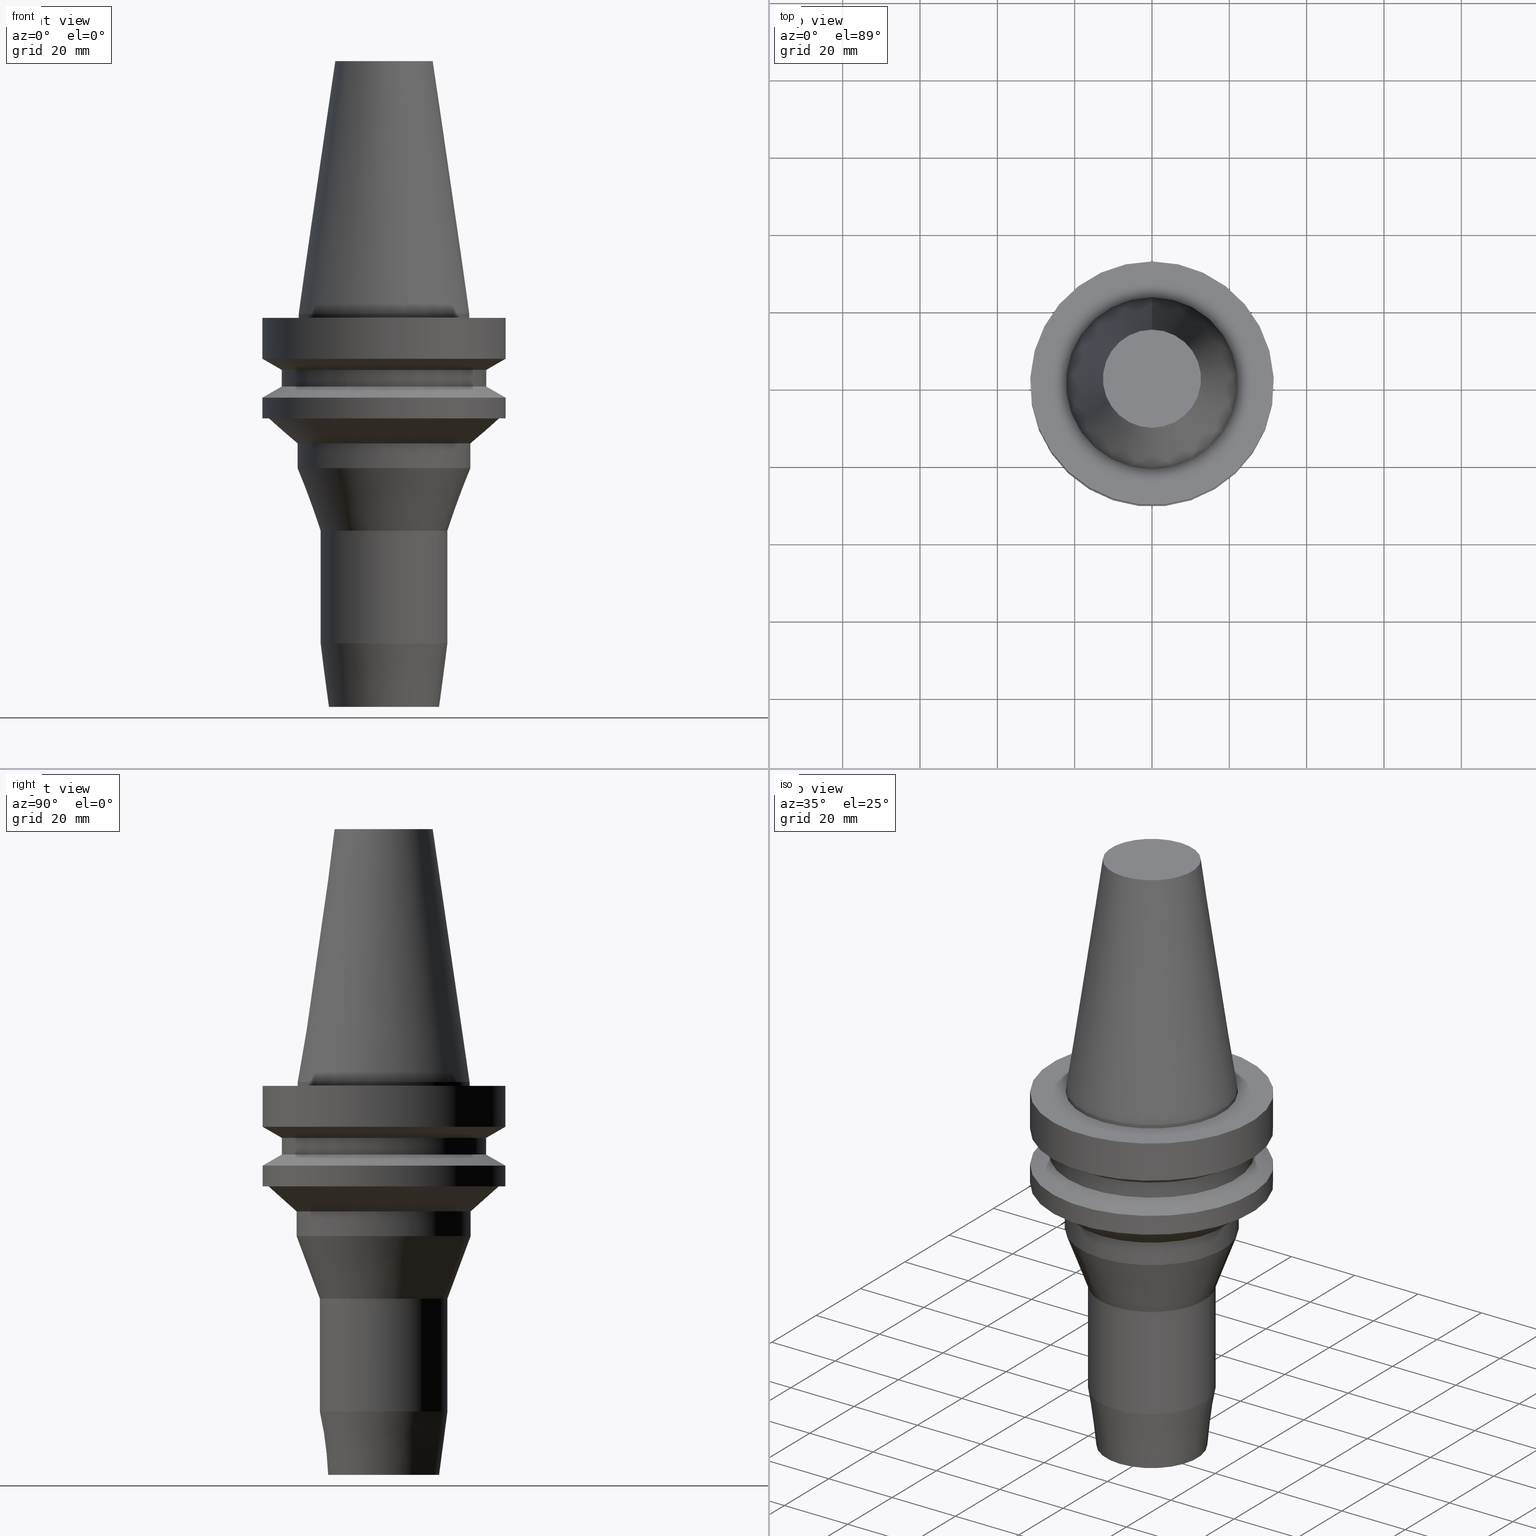
[diagram: canonical four-view strip — front | top / right | iso, engineering-drawing reading convention]
A machine part, canonical four-view strip (front | top / right | iso — engineering-drawing reading convention). The complete STEP part file that produces these views, byte-faithful:
ISO-10303-21;
HEADER;
FILE_DESCRIPTION((''),'1');
FILE_NAME('V:/90_\X2\53D65F9730C730FC30BF\X0\/00_\X2\6DE18DEF30C730FC30BF\X0\/ALL/BBT-BKUS\X2\FF76FF80FF9BFF78FF9E752852A05DE556F3\X0\201801/BBT40-HDC/BBT40-HDC.500-4.stp','2018-02-07T05:02:33',(''),(''),'Spatial Interop R21 SP3','Kubotek KeyCreator 2011 V10.0.2 (22737)',' ');
FILE_SCHEMA(('automotive_design'));
ENDSEC;
DATA;
#1=MECHANICAL_DESIGN_GEOMETRIC_PRESENTATION_REPRESENTATION(' ',(#10,#11,#12,#13,#14,#15,#16,#17,#18,#19,#20,#21,#22,#23,#24,#25,#26,#27,#28,#29,#30,#31,#32,#33,#34,#35,#36,#37,#38,#39,#40,#41),#6);
#2=PRODUCT_DEFINITION_CONTEXT('',#42,'design');
#3=APPLICATION_PROTOCOL_DEFINITION('INTERNATIONAL STANDARD','automotive_design',1994,#42);
#4=PRODUCT_CATEGORY_RELATIONSHIP('NONE','NONE',#43,#44);
#5=SHAPE_DEFINITION_REPRESENTATION(#45,#46);
#6= (GEOMETRIC_REPRESENTATION_CONTEXT(3)GLOBAL_UNCERTAINTY_ASSIGNED_CONTEXT((#49))GLOBAL_UNIT_ASSIGNED_CONTEXT((#51,#52,#53))REPRESENTATION_CONTEXT('NONE','WORKSPACE'));
#10=STYLED_ITEM('',(#55,#56),#57);
#11=STYLED_ITEM('',(#58),#59);
#12=STYLED_ITEM('',(#60,#61),#62);
#13=STYLED_ITEM('',(#63,#64),#65);
#14=STYLED_ITEM('',(#66,#67),#68);
#15=STYLED_ITEM('',(#69,#70),#71);
#16=STYLED_ITEM('',(#72),#73);
#17=STYLED_ITEM('',(#74,#75),#76);
#18=STYLED_ITEM('',(#77),#78);
#19=STYLED_ITEM('',(#79,#80),#81);
#20=STYLED_ITEM('',(#82),#83);
#21=STYLED_ITEM('',(#84,#85),#86);
#22=STYLED_ITEM('',(#87,#88),#89);
#23=STYLED_ITEM('',(#90),#91);
#24=STYLED_ITEM('',(#92,#93),#94);
#25=STYLED_ITEM('',(#95,#96),#97);
#26=STYLED_ITEM('',(#98),#99);
#27=STYLED_ITEM('',(#100,#101),#102);
#28=STYLED_ITEM('',(#103),#104);
#29=STYLED_ITEM('',(#105),#106);
#30=STYLED_ITEM('',(#107),#108);
#31=STYLED_ITEM('',(#109,#110),#111);
#32=STYLED_ITEM('',(#112,#113),#114);
#33=STYLED_ITEM('',(#115),#116);
#34=STYLED_ITEM('',(#117,#118),#119);
#35=STYLED_ITEM('',(#120),#121);
#36=STYLED_ITEM('',(#122),#123);
#37=STYLED_ITEM('',(#124),#125);
#38=STYLED_ITEM('',(#126),#127);
#39=STYLED_ITEM('',(#128),#129);
#40=STYLED_ITEM('',(#130,#131),#132);
#41=STYLED_ITEM('',(#133,#134),#135);
#42=APPLICATION_CONTEXT(' ');
#43=PRODUCT_CATEGORY('part','NONE');
#44=PRODUCT_RELATED_PRODUCT_CATEGORY('detail',' ',(#136));
#45=PRODUCT_DEFINITION_SHAPE('NONE','NONE',#137);
#46=ADVANCED_BREP_SHAPE_REPRESENTATION('Unnamed[1]',(#97,#138),#6);
#49=UNCERTAINTY_MEASURE_WITH_UNIT(LENGTH_MEASURE(1.0E-006),#51,'','');
#51= (CONVERSION_BASED_UNIT('MILLIMETRE',#141)LENGTH_UNIT()NAMED_UNIT(#144));
#52= (NAMED_UNIT(#146)PLANE_ANGLE_UNIT()SI_UNIT($,.RADIAN.));
#53= (NAMED_UNIT(#146)SOLID_ANGLE_UNIT()SI_UNIT($,.STERADIAN.));
#55=PRESENTATION_STYLE_ASSIGNMENT((#152));
#56=PRESENTATION_STYLE_ASSIGNMENT((#153));
#57=ADVANCED_FACE('Unnamed[1]',(#154),#155,.T.);
#58=PRESENTATION_STYLE_ASSIGNMENT((#156));
#59=EDGE_CURVE('Unnamed[1]',#157,#157,#158,.T.);
#60=PRESENTATION_STYLE_ASSIGNMENT((#159));
#61=PRESENTATION_STYLE_ASSIGNMENT((#160));
#62=ADVANCED_FACE('Unnamed[1]',(#161,#162),#163,.T.);
#63=PRESENTATION_STYLE_ASSIGNMENT((#164));
#64=PRESENTATION_STYLE_ASSIGNMENT((#165));
#65=ADVANCED_FACE('Unnamed[1]',(#166,#167),#168,.T.);
#66=PRESENTATION_STYLE_ASSIGNMENT((#169));
#67=PRESENTATION_STYLE_ASSIGNMENT((#170));
#68=ADVANCED_FACE('Unnamed[1]',(#171,#172),#173,.T.);
#69=PRESENTATION_STYLE_ASSIGNMENT((#174));
#70=PRESENTATION_STYLE_ASSIGNMENT((#175));
#71=ADVANCED_FACE('Unnamed[1]',(#176,#177),#178,.T.);
#72=PRESENTATION_STYLE_ASSIGNMENT((#179));
#73=EDGE_CURVE('Unnamed[1]',#180,#180,#181,.T.);
#74=PRESENTATION_STYLE_ASSIGNMENT((#182));
#75=PRESENTATION_STYLE_ASSIGNMENT((#183));
#76=ADVANCED_FACE('Unnamed[1]',(#184,#185),#186,.T.);
#77=PRESENTATION_STYLE_ASSIGNMENT((#187));
#78=EDGE_CURVE('Unnamed[1]',#188,#188,#189,.T.);
#79=PRESENTATION_STYLE_ASSIGNMENT((#190));
#80=PRESENTATION_STYLE_ASSIGNMENT((#191));
#81=ADVANCED_FACE('Unnamed[1]',(#192,#193),#194,.T.);
#82=PRESENTATION_STYLE_ASSIGNMENT((#195));
#83=EDGE_CURVE('Unnamed[1]',#196,#196,#197,.T.);
#84=PRESENTATION_STYLE_ASSIGNMENT((#198));
#85=PRESENTATION_STYLE_ASSIGNMENT((#199));
#86=ADVANCED_FACE('Unnamed[1]',(#200,#201),#202,.T.);
#87=PRESENTATION_STYLE_ASSIGNMENT((#203));
#88=PRESENTATION_STYLE_ASSIGNMENT((#204));
#89=ADVANCED_FACE('Unnamed[1]',(#205,#206),#207,.T.);
#90=PRESENTATION_STYLE_ASSIGNMENT((#208));
#91=EDGE_CURVE('Unnamed[1]',#209,#209,#210,.T.);
#92=PRESENTATION_STYLE_ASSIGNMENT((#211));
#93=PRESENTATION_STYLE_ASSIGNMENT((#212));
#94=ADVANCED_FACE('Unnamed[1]',(#213),#214,.T.);
#95=PRESENTATION_STYLE_ASSIGNMENT((#215));
#96=PRESENTATION_STYLE_ASSIGNMENT((#216));
#97=MANIFOLD_SOLID_BREP('Unnamed[1]',#217);
#98=PRESENTATION_STYLE_ASSIGNMENT((#218));
#99=EDGE_CURVE('Unnamed[1]',#219,#219,#220,.T.);
#100=PRESENTATION_STYLE_ASSIGNMENT((#221));
#101=PRESENTATION_STYLE_ASSIGNMENT((#222));
#102=ADVANCED_FACE('Unnamed[1]',(#223,#224),#225,.T.);
#103=PRESENTATION_STYLE_ASSIGNMENT((#226));
#104=EDGE_CURVE('Unnamed[1]',#227,#227,#228,.T.);
#105=PRESENTATION_STYLE_ASSIGNMENT((#229));
#106=EDGE_CURVE('Unnamed[1]',#230,#230,#231,.T.);
#107=PRESENTATION_STYLE_ASSIGNMENT((#232));
#108=EDGE_CURVE('Unnamed[1]',#233,#233,#234,.T.);
#109=PRESENTATION_STYLE_ASSIGNMENT((#235));
#110=PRESENTATION_STYLE_ASSIGNMENT((#236));
#111=ADVANCED_FACE('Unnamed[1]',(#237,#238),#239,.T.);
#112=PRESENTATION_STYLE_ASSIGNMENT((#240));
#113=PRESENTATION_STYLE_ASSIGNMENT((#241));
#114=ADVANCED_FACE('Unnamed[1]',(#242,#243),#244,.T.);
#115=PRESENTATION_STYLE_ASSIGNMENT((#245));
#116=EDGE_CURVE('Unnamed[1]',#246,#246,#247,.T.);
#117=PRESENTATION_STYLE_ASSIGNMENT((#248));
#118=PRESENTATION_STYLE_ASSIGNMENT((#249));
#119=ADVANCED_FACE('Unnamed[1]',(#250,#251),#252,.T.);
#120=PRESENTATION_STYLE_ASSIGNMENT((#253));
#121=EDGE_CURVE('Unnamed[1]',#254,#254,#255,.T.);
#122=PRESENTATION_STYLE_ASSIGNMENT((#256));
#123=EDGE_CURVE('Unnamed[1]',#257,#257,#258,.T.);
#124=PRESENTATION_STYLE_ASSIGNMENT((#259));
#125=EDGE_CURVE('Unnamed[1]',#260,#260,#261,.T.);
#126=PRESENTATION_STYLE_ASSIGNMENT((#262));
#127=EDGE_CURVE('Unnamed[1]',#263,#263,#264,.T.);
#128=PRESENTATION_STYLE_ASSIGNMENT((#265));
#129=EDGE_CURVE('Unnamed[1]',#266,#266,#267,.T.);
#130=PRESENTATION_STYLE_ASSIGNMENT((#268));
#131=PRESENTATION_STYLE_ASSIGNMENT((#269));
#132=ADVANCED_FACE('Unnamed[1]',(#270,#271),#272,.T.);
#133=PRESENTATION_STYLE_ASSIGNMENT((#273));
#134=PRESENTATION_STYLE_ASSIGNMENT((#274));
#135=ADVANCED_FACE('Unnamed[1]',(#275,#276),#277,.T.);
#136=PRODUCT('Unnamed[1]','Unnamed[1]','PART-Unnamed[1]-DESC',(#278));
#137=PRODUCT_DEFINITION('NONE','NONE',#279,#2);
#138=AXIS2_PLACEMENT_3D('',#280,#281,#282);
#141=LENGTH_MEASURE_WITH_UNIT(LENGTH_MEASURE(1.0),#283);
#144=DIMENSIONAL_EXPONENTS(1.0,0.0,0.0,0.0,0.0,0.0,0.0);
#146=DIMENSIONAL_EXPONENTS(0.0,0.0,0.0,0.0,0.0,0.0,0.0);
#152=SURFACE_STYLE_USAGE(.BOTH.,#284);
#153=CURVE_STYLE('',#285,POSITIVE_LENGTH_MEASURE(1000.0),#286);
#154=FACE_OUTER_BOUND('',#287,.T.);
#155=PLANE('',#288);
#156=CURVE_STYLE('',#289,POSITIVE_LENGTH_MEASURE(1000.0),#290);
#157=VERTEX_POINT('',#291);
#158=CIRCLE('',#292,26.5);
#159=SURFACE_STYLE_USAGE(.BOTH.,#293);
#160=CURVE_STYLE('',#294,POSITIVE_LENGTH_MEASURE(1000.0),#295);
#161=FACE_BOUND('',#296,.T.);
#162=FACE_BOUND('',#297,.T.);
#163=CONICAL_SURFACE('',#298,26.1261195155516,0.842867621949319);
#164=SURFACE_STYLE_USAGE(.BOTH.,#299);
#165=CURVE_STYLE('',#300,POSITIVE_LENGTH_MEASURE(1000.0),#301);
#166=FACE_BOUND('',#302,.T.);
#167=FACE_BOUND('',#303,.T.);
#168=CONICAL_SURFACE('',#304,28.9999999999999,1.04719755119657);
#169=SURFACE_STYLE_USAGE(.BOTH.,#305);
#170=CURVE_STYLE('',#306,POSITIVE_LENGTH_MEASURE(1000.0),#307);
#171=FACE_BOUND('',#308,.T.);
#172=FACE_BOUND('',#309,.T.);
#173=CYLINDRICAL_SURFACE('',#310,26.4999999999997);
#174=SURFACE_STYLE_USAGE(.BOTH.,#311);
#175=CURVE_STYLE('',#312,POSITIVE_LENGTH_MEASURE(1000.0),#313);
#176=FACE_BOUND('',#314,.T.);
#177=FACE_BOUND('',#315,.T.);
#178=CONICAL_SURFACE('',#316,17.4562500000001,0.144812498238936);
#179=CURVE_STYLE('',#317,POSITIVE_LENGTH_MEASURE(1000.0),#318);
#180=VERTEX_POINT('',#319);
#181=CIRCLE('',#320,12.6875000000001);
#182=SURFACE_STYLE_USAGE(.BOTH.,#321);
#183=CURVE_STYLE('',#322,POSITIVE_LENGTH_MEASURE(1000.0),#323);
#184=FACE_BOUND('',#324,.T.);
#185=FACE_BOUND('',#325,.T.);
#186=CONICAL_SURFACE('',#326,29.0000000000003,1.04719755119651);
#187=CURVE_STYLE('',#327,POSITIVE_LENGTH_MEASURE(1000.0),#328);
#188=VERTEX_POINT('',#329);
#189=CIRCLE('',#330,16.4999999999999);
#190=SURFACE_STYLE_USAGE(.BOTH.,#331);
#191=CURVE_STYLE('',#332,POSITIVE_LENGTH_MEASURE(1000.0),#333);
#192=FACE_BOUND('',#334,.T.);
#193=FACE_BOUND('',#335,.T.);
#194=CYLINDRICAL_SURFACE('',#336,31.5000000000005);
#195=CURVE_STYLE('',#337,POSITIVE_LENGTH_MEASURE(1000.0),#338);
#196=VERTEX_POINT('',#339);
#197=CIRCLE('',#340,22.225);
#198=SURFACE_STYLE_USAGE(.BOTH.,#341);
#199=CURVE_STYLE('',#342,POSITIVE_LENGTH_MEASURE(1000.0),#343);
#200=FACE_BOUND('',#344,.T.);
#201=FACE_BOUND('',#345,.T.);
#202=CONICAL_SURFACE('',#346,15.4226826777203,0.130899693899545);
#203=SURFACE_STYLE_USAGE(.BOTH.,#347);
#204=CURVE_STYLE('',#348,POSITIVE_LENGTH_MEASURE(1000.0),#349);
#205=FACE_BOUND('',#350,.T.);
#206=FACE_OUTER_BOUND('',#351,.T.);
#207=PLANE('',#352);
#208=CURVE_STYLE('',#353,POSITIVE_LENGTH_MEASURE(1000.0),#354);
#209=VERTEX_POINT('',#355);
#210=CIRCLE('',#356,22.4999999999999);
#211=SURFACE_STYLE_USAGE(.BOTH.,#357);
#212=CURVE_STYLE('',#358,POSITIVE_LENGTH_MEASURE(1000.0),#359);
#213=FACE_OUTER_BOUND('',#360,.T.);
#214=PLANE('',#361);
#215=SURFACE_STYLE_USAGE(.BOTH.,#362);
#216=CURVE_STYLE('',#363,POSITIVE_LENGTH_MEASURE(1000.0),#364);
#217=CLOSED_SHELL('',(#94,#71,#111,#132,#114,#65,#68,#76,#81,#89,#62,#102,#135,#119,#86,#57));
#218=CURVE_STYLE('',#365,POSITIVE_LENGTH_MEASURE(1000.0),#366);
#219=VERTEX_POINT('',#367);
#220=CIRCLE('',#368,31.5000000000003);
#221=SURFACE_STYLE_USAGE(.BOTH.,#369);
#222=CURVE_STYLE('',#370,POSITIVE_LENGTH_MEASURE(1000.0),#371);
#223=FACE_BOUND('',#372,.T.);
#224=FACE_BOUND('',#373,.T.);
#225=CYLINDRICAL_SURFACE('',#374,22.4999999999999);
#226=CURVE_STYLE('',#375,POSITIVE_LENGTH_MEASURE(1000.0),#376);
#227=VERTEX_POINT('',#377);
#228=CIRCLE('',#378,29.7522390311033);
#229=CURVE_STYLE('',#379,POSITIVE_LENGTH_MEASURE(1000.0),#380);
#230=VERTEX_POINT('',#381);
#231=CIRCLE('',#382,14.3453653554406);
#232=CURVE_STYLE('',#383,POSITIVE_LENGTH_MEASURE(1000.0),#384);
#233=VERTEX_POINT('',#385);
#234=CIRCLE('',#386,16.4999999999999);
#235=SURFACE_STYLE_USAGE(.BOTH.,#387);
#236=CURVE_STYLE('',#388,POSITIVE_LENGTH_MEASURE(1000.0),#389);
#237=FACE_BOUND('',#390,.T.);
#238=FACE_BOUND('',#391,.T.);
#239=CYLINDRICAL_SURFACE('',#392,22.225);
#240=SURFACE_STYLE_USAGE(.BOTH.,#393);
#241=CURVE_STYLE('',#394,POSITIVE_LENGTH_MEASURE(1000.0),#395);
#242=FACE_BOUND('',#396,.T.);
#243=FACE_BOUND('',#397,.T.);
#244=CYLINDRICAL_SURFACE('',#398,31.5);
#245=CURVE_STYLE('',#399,POSITIVE_LENGTH_MEASURE(1000.0),#400);
#246=VERTEX_POINT('',#401);
#247=CIRCLE('',#402,22.4999999999999);
#248=SURFACE_STYLE_USAGE(.BOTH.,#403);
#249=CURVE_STYLE('',#404,POSITIVE_LENGTH_MEASURE(1000.0),#405);
#250=FACE_BOUND('',#406,.T.);
#251=FACE_BOUND('',#407,.T.);
#252=CYLINDRICAL_SURFACE('',#408,16.4999999999999);
#253=CURVE_STYLE('',#409,POSITIVE_LENGTH_MEASURE(1000.0),#410);
#254=VERTEX_POINT('',#411);
#255=CIRCLE('',#412,22.225);
#256=CURVE_STYLE('',#413,POSITIVE_LENGTH_MEASURE(1000.0),#414);
#257=VERTEX_POINT('',#415);
#258=CIRCLE('',#416,31.4999999999997);
#259=CURVE_STYLE('',#417,POSITIVE_LENGTH_MEASURE(1000.0),#418);
#260=VERTEX_POINT('',#419);
#261=CIRCLE('',#420,31.5000000000007);
#262=CURVE_STYLE('',#421,POSITIVE_LENGTH_MEASURE(1000.0),#422);
#263=VERTEX_POINT('',#423);
#264=CIRCLE('',#424,26.4999999999994);
#265=CURVE_STYLE('',#425,POSITIVE_LENGTH_MEASURE(1000.0),#426);
#266=VERTEX_POINT('',#427);
#267=CIRCLE('',#428,31.5000000000004);
#268=SURFACE_STYLE_USAGE(.BOTH.,#429);
#269=CURVE_STYLE('',#430,POSITIVE_LENGTH_MEASURE(1000.0),#431);
#270=FACE_OUTER_BOUND('',#432,.T.);
#271=FACE_BOUND('',#433,.T.);
#272=PLANE('',#434);
#273=SURFACE_STYLE_USAGE(.BOTH.,#435);
#274=CURVE_STYLE('',#436,POSITIVE_LENGTH_MEASURE(1000.0),#437);
#275=FACE_BOUND('',#438,.T.);
#276=FACE_BOUND('',#439,.T.);
#277=CONICAL_SURFACE('',#440,19.4999999999999,0.355684628687854);
#278=PRODUCT_CONTEXT('',#42,'mechanical');
#279=PRODUCT_DEFINITION_FORMATION_WITH_SPECIFIED_SOURCE(' ','NONE',#136,.NOT_KNOWN.);
#280=CARTESIAN_POINT('',(0.0,0.0,0.0));
#281=DIRECTION('',(0.0,0.0,1.0));
#282=DIRECTION('',(1.0,0.0,0.0));
#283= (NAMED_UNIT(#144)LENGTH_UNIT()SI_UNIT(.MILLI.,.METRE.));
#284=SURFACE_SIDE_STYLE('',(#442));
#285=DRAUGHTING_PRE_DEFINED_CURVE_FONT('continuous');
#286=COLOUR_RGB('',0.0,1.0,0.0);
#287=EDGE_LOOP('',(#443));
#288=AXIS2_PLACEMENT_3D('',#444,#445,#446);
#289=DRAUGHTING_PRE_DEFINED_CURVE_FONT('continuous');
#290=COLOUR_RGB('',0.0,1.0,0.0);
#291=CARTESIAN_POINT('',(1.1479681728942E-015,26.5,-18.7477430013855));
#292=AXIS2_PLACEMENT_3D('',#447,#448,#449);
#293=SURFACE_SIDE_STYLE('',(#450));
#294=DRAUGHTING_PRE_DEFINED_CURVE_FONT('continuous');
#295=COLOUR_RGB('',0.0,1.0,0.0);
#296=EDGE_LOOP('',(#451));
#297=EDGE_LOOP('',(#452));
#298=AXIS2_PLACEMENT_3D('',#453,#454,#455);
#299=SURFACE_SIDE_STYLE('',(#456));
#300=DRAUGHTING_PRE_DEFINED_CURVE_FONT('continuous');
#301=COLOUR_RGB('',0.0,1.0,0.0);
#302=EDGE_LOOP('',(#457));
#303=EDGE_LOOP('',(#458));
#304=AXIS2_PLACEMENT_3D('',#459,#460,#461);
#305=SURFACE_SIDE_STYLE('',(#462));
#306=DRAUGHTING_PRE_DEFINED_CURVE_FONT('continuous');
#307=COLOUR_RGB('',0.0,1.0,0.0);
#308=EDGE_LOOP('',(#463));
#309=EDGE_LOOP('',(#464));
#310=AXIS2_PLACEMENT_3D('',#465,#466,#467);
#311=SURFACE_SIDE_STYLE('',(#468));
#312=DRAUGHTING_PRE_DEFINED_CURVE_FONT('continuous');
#313=COLOUR_RGB('',0.0,1.0,0.0);
#314=EDGE_LOOP('',(#469));
#315=EDGE_LOOP('',(#470));
#316=AXIS2_PLACEMENT_3D('',#471,#472,#473);
#317=DRAUGHTING_PRE_DEFINED_CURVE_FONT('continuous');
#318=COLOUR_RGB('',0.0,1.0,0.0);
#319=CARTESIAN_POINT('',(-4.00459503321185E-015,12.6875000000002,65.4000000000001));
#320=AXIS2_PLACEMENT_3D('',#474,#475,#476);
#321=SURFACE_SIDE_STYLE('',(#477));
#322=DRAUGHTING_PRE_DEFINED_CURVE_FONT('continuous');
#323=COLOUR_RGB('',0.0,1.0,0.0);
#324=EDGE_LOOP('',(#478));
#325=EDGE_LOOP('',(#479));
#326=AXIS2_PLACEMENT_3D('',#480,#481,#482);
#327=DRAUGHTING_PRE_DEFINED_CURVE_FONT('continuous');
#328=COLOUR_RGB('',0.0,1.0,0.0);
#329=CARTESIAN_POINT('',(5.21907267377241E-015,16.4999999999999,-85.2339250370986));
#330=AXIS2_PLACEMENT_3D('',#483,#484,#485);
#331=SURFACE_SIDE_STYLE('',(#486));
#332=DRAUGHTING_PRE_DEFINED_CURVE_FONT('continuous');
#333=COLOUR_RGB('',0.0,1.0,0.0);
#334=EDGE_LOOP('',(#487));
#335=EDGE_LOOP('',(#488));
#336=AXIS2_PLACEMENT_3D('',#489,#490,#491);
#337=DRAUGHTING_PRE_DEFINED_CURVE_FONT('continuous');
#338=COLOUR_RGB('',0.0,1.0,0.0);
#339=CARTESIAN_POINT('',(6.12323399573622E-017,22.2250000000001,-0.999999999999912));
#340=AXIS2_PLACEMENT_3D('',#492,#493,#494);
#341=SURFACE_SIDE_STYLE('',(#495));
#342=DRAUGHTING_PRE_DEFINED_CURVE_FONT('continuous');
#343=COLOUR_RGB('',0.0,1.0,0.0);
#344=EDGE_LOOP('',(#496));
#345=EDGE_LOOP('',(#497));
#346=AXIS2_PLACEMENT_3D('',#498,#499,#500);
#347=SURFACE_SIDE_STYLE('',(#501));
#348=DRAUGHTING_PRE_DEFINED_CURVE_FONT('continuous');
#349=COLOUR_RGB('',0.0,1.0,0.0);
#350=EDGE_LOOP('',(#502));
#351=EDGE_LOOP('',(#503));
#352=AXIS2_PLACEMENT_3D('',#504,#505,#506);
#353=DRAUGHTING_PRE_DEFINED_CURVE_FONT('continuous');
#354=COLOUR_RGB('',0.0,1.0,0.0);
#355=CARTESIAN_POINT('',(2.04902721682137E-015,22.4999999999999,-33.4631539191216));
#356=AXIS2_PLACEMENT_3D('',#507,#508,#509);
#357=SURFACE_SIDE_STYLE('',(#510));
#358=DRAUGHTING_PRE_DEFINED_CURVE_FONT('continuous');
#359=COLOUR_RGB('',0.0,1.0,0.0);
#360=EDGE_LOOP('',(#511));
#361=AXIS2_PLACEMENT_3D('',#512,#513,#514);
#362=SURFACE_SIDE_STYLE('',(#515));
#363=DRAUGHTING_PRE_DEFINED_CURVE_FONT('continuous');
#364=COLOUR_RGB('',0.0,1.0,0.0);
#365=DRAUGHTING_PRE_DEFINED_CURVE_FONT('continuous');
#366=COLOUR_RGB('',0.0,1.0,0.0);
#367=CARTESIAN_POINT('',(7.08182973902924E-016,31.5000000000004,-11.5655056526664));
#368=AXIS2_PLACEMENT_3D('',#516,#517,#518);
#369=SURFACE_SIDE_STYLE('',(#519));
#370=DRAUGHTING_PRE_DEFINED_CURVE_FONT('continuous');
#371=COLOUR_RGB('',0.0,1.0,0.0);
#372=EDGE_LOOP('',(#520));
#373=EDGE_LOOP('',(#521));
#374=AXIS2_PLACEMENT_3D('',#522,#523,#524);
#375=DRAUGHTING_PRE_DEFINED_CURVE_FONT('continuous');
#376=COLOUR_RGB('',0.0,1.0,0.0);
#377=CARTESIAN_POINT('',(1.65327317884891E-015,29.7522390311033,-26.9999999999998));
#378=AXIS2_PLACEMENT_3D('',#525,#526,#527);
#379=DRAUGHTING_PRE_DEFINED_CURVE_FONT('continuous');
#380=COLOUR_RGB('',0.0,1.0,0.0);
#381=CARTESIAN_POINT('',(6.22120573966448E-015,14.3453653554406,-101.599999999933));
#382=AXIS2_PLACEMENT_3D('',#528,#529,#530);
#383=DRAUGHTING_PRE_DEFINED_CURVE_FONT('continuous');
#384=COLOUR_RGB('',0.0,1.0,0.0);
#385=CARTESIAN_POINT('',(3.4303581490876E-015,16.4999999999999,-56.0219999999338));
#386=AXIS2_PLACEMENT_3D('',#531,#532,#533);
#387=SURFACE_SIDE_STYLE('',(#534));
#388=DRAUGHTING_PRE_DEFINED_CURVE_FONT('continuous');
#389=COLOUR_RGB('',0.0,1.0,0.0);
#390=EDGE_LOOP('',(#535));
#391=EDGE_LOOP('',(#536));
#392=AXIS2_PLACEMENT_3D('',#537,#538,#539);
#393=SURFACE_SIDE_STYLE('',(#540));
#394=DRAUGHTING_PRE_DEFINED_CURVE_FONT('continuous');
#395=COLOUR_RGB('',0.0,1.0,0.0);
#396=EDGE_LOOP('',(#541));
#397=EDGE_LOOP('',(#542));
#398=AXIS2_PLACEMENT_3D('',#543,#544,#545);
#399=DRAUGHTING_PRE_DEFINED_CURVE_FONT('continuous');
#400=COLOUR_RGB('',0.0,1.0,0.0);
#401=CARTESIAN_POINT('',(2.44136804817913E-015,22.4999999999999,-39.8705659440568));
#402=AXIS2_PLACEMENT_3D('',#546,#547,#548);
#403=SURFACE_SIDE_STYLE('',(#549));
#404=DRAUGHTING_PRE_DEFINED_CURVE_FONT('continuous');
#405=COLOUR_RGB('',0.0,1.0,0.0);
#406=EDGE_LOOP('',(#550));
#407=EDGE_LOOP('',(#551));
#408=AXIS2_PLACEMENT_3D('',#552,#553,#554);
#409=DRAUGHTING_PRE_DEFINED_CURVE_FONT('continuous');
#410=COLOUR_RGB('',0.0,1.0,0.0);
#411=CARTESIAN_POINT('',(1.71319921032766E-029,22.2250000000001,-2.8153873565375E-013));
#412=AXIS2_PLACEMENT_3D('',#555,#556,#557);
#413=DRAUGHTING_PRE_DEFINED_CURVE_FONT('continuous');
#414=COLOUR_RGB('',0.0,1.0,0.0);
#415=CARTESIAN_POINT('',(6.12323399573568E-017,31.4999999999997,-0.999999999999825));
#416=AXIS2_PLACEMENT_3D('',#558,#559,#560);
#417=DRAUGHTING_PRE_DEFINED_CURVE_FONT('continuous');
#418=COLOUR_RGB('',0.0,1.0,0.0);
#419=CARTESIAN_POINT('',(1.32473071268174E-015,31.5000000000007,-21.6344943473346));
#420=AXIS2_PLACEMENT_3D('',#561,#562,#563);
#421=DRAUGHTING_PRE_DEFINED_CURVE_FONT('continuous');
#422=COLOUR_RGB('',0.0,1.0,0.0);
#423=CARTESIAN_POINT('',(8.8494551369045E-016,26.4999999999995,-14.4522569986152));
#424=AXIS2_PLACEMENT_3D('',#564,#565,#566);
#425=DRAUGHTING_PRE_DEFINED_CURVE_FONT('continuous');
#426=COLOUR_RGB('',0.0,1.0,0.0);
#427=CARTESIAN_POINT('',(1.65327317884891E-015,31.5000000000004,-26.9999999999998));
#428=AXIS2_PLACEMENT_3D('',#567,#568,#569);
#429=SURFACE_SIDE_STYLE('',(#570));
#430=DRAUGHTING_PRE_DEFINED_CURVE_FONT('continuous');
#431=COLOUR_RGB('',0.0,1.0,0.0);
#432=EDGE_LOOP('',(#571));
#433=EDGE_LOOP('',(#572));
#434=AXIS2_PLACEMENT_3D('',#573,#574,#575);
#435=SURFACE_SIDE_STYLE('',(#576));
#436=DRAUGHTING_PRE_DEFINED_CURVE_FONT('continuous');
#437=COLOUR_RGB('',0.0,1.0,0.0);
#438=EDGE_LOOP('',(#577));
#439=EDGE_LOOP('',(#578));
#440=AXIS2_PLACEMENT_3D('',#579,#580,#581);
#442=SURFACE_STYLE_FILL_AREA(#582);
#443=ORIENTED_EDGE('',*,*,#106,.T.);
#444=CARTESIAN_POINT('',(6.22120573966448E-015,7.1726826777203,-101.599999999934));
#445=DIRECTION('',(6.12323399573677E-017,1.39911923897582E-014,-1.0));
#446=DIRECTION('',(-8.61540601549379E-031,1.0,1.39911923897582E-014));
#447=CARTESIAN_POINT('',(1.1479681728942E-015,3.03471946119538E-014,-18.7477430013855));
#448=DIRECTION('',(6.12323399573677E-017,-5.49881288584998E-016,-1.0));
#449=DIRECTION('',(2.88433652680641E-032,1.0,-5.49881288584998E-016));
#450=SURFACE_STYLE_FILL_AREA(#583);
#451=ORIENTED_EDGE('',*,*,#91,.F.);
#452=ORIENTED_EDGE('',*,*,#104,.T.);
#453=CARTESIAN_POINT('',(1.85115019783514E-015,2.40324491971361E-014,-30.2315769595607));
#454=DIRECTION('',(-6.12323399573677E-017,5.49881288584983E-016,1.0));
#455=DIRECTION('',(2.88433652680564E-032,1.0,-5.49881288584983E-016));
#456=SURFACE_STYLE_FILL_AREA(#584);
#457=ORIENTED_EDGE('',*,*,#127,.F.);
#458=ORIENTED_EDGE('',*,*,#99,.T.);
#459=CARTESIAN_POINT('',(7.96564243796687E-016,3.35028872652235E-014,-13.0088813256408));
#460=DIRECTION('',(-6.12323399573677E-017,5.49881288585027E-016,1.0));
#461=DIRECTION('',(2.88433652680609E-032,1.0,-5.49881288585027E-016));
#462=SURFACE_STYLE_FILL_AREA(#585);
#463=ORIENTED_EDGE('',*,*,#59,.F.);
#464=ORIENTED_EDGE('',*,*,#127,.T.);
#465=CARTESIAN_POINT('',(1.01645684329232E-015,3.15281983011049E-014,-16.6000000000003));
#466=DIRECTION('',(6.12323399573677E-017,-5.49881288585004E-016,-1.0));
#467=DIRECTION('',(2.88433652680644E-032,1.0,-5.49881288585004E-016));
#468=SURFACE_STYLE_FILL_AREA(#586);
#469=ORIENTED_EDGE('',*,*,#121,.F.);
#470=ORIENTED_EDGE('',*,*,#73,.T.);
#471=CARTESIAN_POINT('',(-2.00229751660592E-015,5.86373458283464E-014,32.6999999999999));
#472=DIRECTION('',(6.12323399573677E-017,-5.49881288585022E-016,-1.0));
#473=DIRECTION('',(2.88433652680558E-032,1.0,-5.49881288585022E-016));
#474=CARTESIAN_POINT('',(-4.00459503321185E-015,7.66184639650765E-014,65.4000000000001));
#475=DIRECTION('',(6.12323399573677E-017,-5.49881288585004E-016,-1.0));
#476=DIRECTION('',(2.88433652680606E-032,1.0,-5.49881288585004E-016));
#477=SURFACE_STYLE_FILL_AREA(#587);
#478=ORIENTED_EDGE('',*,*,#125,.F.);
#479=ORIENTED_EDGE('',*,*,#59,.T.);
#480=CARTESIAN_POINT('',(1.23634944278797E-015,2.95535093369863E-014,-20.1911186743601));
#481=DIRECTION('',(6.12323399573677E-017,-5.49881288585019E-016,-1.0));
#482=DIRECTION('',(2.88433652680667E-032,1.0,-5.49881288585019E-016));
#483=CARTESIAN_POINT('',(5.21907267377241E-015,-6.21231283894203E-015,-85.2339250370986));
#484=DIRECTION('',(6.12323399573677E-017,-5.49881288585005E-016,-1.0));
#485=DIRECTION('',(2.88433652680655E-032,1.0,-5.49881288585005E-016));
#486=SURFACE_STYLE_FILL_AREA(#588);
#487=ORIENTED_EDGE('',*,*,#129,.F.);
#488=ORIENTED_EDGE('',*,*,#125,.T.);
#489=CARTESIAN_POINT('',(1.48900194576533E-015,2.72846284809199E-014,-24.3172471736672));
#490=DIRECTION('',(6.12323399573677E-017,-5.49881288585039E-016,-1.0));
#491=DIRECTION('',(2.8843365268069E-032,1.0,-5.49881288585039E-016));
#492=CARTESIAN_POINT('',(6.12323399573616E-017,4.01063464030314E-014,-0.999999999999901));
#493=DIRECTION('',(6.12323399573677E-017,-5.4988128858496E-016,-1.0));
#494=DIRECTION('',(2.88433652680612E-032,1.0,-5.4988128858496E-016));
#495=SURFACE_STYLE_FILL_AREA(#589);
#496=ORIENTED_EDGE('',*,*,#106,.F.);
#497=ORIENTED_EDGE('',*,*,#78,.T.);
#498=CARTESIAN_POINT('',(5.72013920671844E-015,-1.07120120337633E-014,-93.416962518516));
#499=DIRECTION('',(-6.12323399573677E-017,5.49881288585067E-016,1.0));
#500=DIRECTION('',(2.88433652680717E-032,1.0,-5.49881288585067E-016));
#501=SURFACE_STYLE_FILL_AREA(#590);
#502=ORIENTED_EDGE('',*,*,#104,.F.);
#503=ORIENTED_EDGE('',*,*,#129,.T.);
#504=CARTESIAN_POINT('',(1.65327317884891E-015,30.6261195155519,-26.9999999999998));
#505=DIRECTION('',(6.12323399573677E-017,6.22063326593565E-015,-1.0));
#506=DIRECTION('',(-3.85731083620651E-031,1.0,6.22063326593565E-015));
#507=CARTESIAN_POINT('',(2.04902721682137E-015,2.22554654944511E-014,-33.4631539191216));
#508=DIRECTION('',(6.12323399573677E-017,-5.4988128858503E-016,-1.0));
#509=DIRECTION('',(2.88433652680582E-032,1.0,-5.4988128858503E-016));
#510=SURFACE_STYLE_FILL_AREA(#591);
#511=ORIENTED_EDGE('',*,*,#73,.F.);
#512=CARTESIAN_POINT('',(-4.00459503321185E-015,6.34375000000014,65.4000000000001));
#513=DIRECTION('',(-6.12323399573677E-017,9.97602686800683E-016,1.0));
#514=DIRECTION('',(-5.62583941297938E-032,-1.0,9.97602686800683E-016));
#515=SURFACE_STYLE_FILL_AREA(#592);
#516=CARTESIAN_POINT('',(7.08182973902923E-016,3.42965725401909E-014,-11.5655056526663));
#517=DIRECTION('',(6.12323399573677E-017,-5.49881288585042E-016,-1.0));
#518=DIRECTION('',(2.88433652680691E-032,1.0,-5.49881288585042E-016));
#519=SURFACE_STYLE_FILL_AREA(#593);
#520=ORIENTED_EDGE('',*,*,#116,.F.);
#521=ORIENTED_EDGE('',*,*,#91,.T.);
#522=CARTESIAN_POINT('',(2.24519763250025E-015,2.04938075040679E-014,-36.6668599315892));
#523=DIRECTION('',(6.12323399573677E-017,-5.4988128858503E-016,-1.0));
#524=DIRECTION('',(2.88433652680582E-032,1.0,-5.4988128858503E-016));
#525=CARTESIAN_POINT('',(1.65327317884891E-015,2.58094328998211E-014,-26.9999999999998));
#526=DIRECTION('',(6.12323399573676E-017,-5.49881288585056E-016,-1.0));
#527=DIRECTION('',(2.8843365268067E-032,1.0,-5.49881288585056E-016));
#528=CARTESIAN_POINT('',(6.22120573966448E-015,-1.52117112285846E-014,-101.599999999933));
#529=DIRECTION('',(6.12323399573677E-017,-5.49881288585027E-016,-1.0));
#530=DIRECTION('',(2.88433652680663E-032,1.0,-5.49881288585027E-016));
#531=CARTESIAN_POINT('',(3.4303581490876E-015,9.85077814254304E-015,-56.0219999999338));
#532=DIRECTION('',(6.12323399573677E-017,-5.49881288585005E-016,-1.0));
#533=DIRECTION('',(2.88433652680655E-032,1.0,-5.49881288585006E-016));
#534=SURFACE_STYLE_FILL_AREA(#594);
#535=ORIENTED_EDGE('',*,*,#83,.F.);
#536=ORIENTED_EDGE('',*,*,#121,.T.);
#537=CARTESIAN_POINT('',(3.06161699786891E-017,4.03812870473238E-014,-0.500000000000085));
#538=DIRECTION('',(6.12323399573677E-017,-5.4988128858496E-016,-1.0));
#539=DIRECTION('',(2.88433652680612E-032,1.0,-5.4988128858496E-016));
#540=SURFACE_STYLE_FILL_AREA(#595);
#541=ORIENTED_EDGE('',*,*,#99,.F.);
#542=ORIENTED_EDGE('',*,*,#123,.T.);
#543=CARTESIAN_POINT('',(3.8470765693014E-016,3.72014594716112E-014,-6.28275282633308));
#544=DIRECTION('',(6.12323399573677E-017,-5.49881288585048E-016,-1.0));
#545=DIRECTION('',(2.88433652680695E-032,1.0,-5.49881288585048E-016));
#546=CARTESIAN_POINT('',(2.44136804817913E-015,1.87321495136846E-014,-39.8705659440568));
#547=DIRECTION('',(6.12323399573676E-017,-5.4988128858503E-016,-1.0));
#548=DIRECTION('',(2.88433652680582E-032,1.0,-5.4988128858503E-016));
#549=SURFACE_STYLE_FILL_AREA(#596);
#550=ORIENTED_EDGE('',*,*,#78,.F.);
#551=ORIENTED_EDGE('',*,*,#108,.T.);
#552=CARTESIAN_POINT('',(4.32471541143001E-015,1.81923265180051E-015,-70.6279625185162));
#553=DIRECTION('',(6.12323399573677E-017,-5.49881288585005E-016,-1.0));
#554=DIRECTION('',(2.88433652680655E-032,1.0,-5.49881288585005E-016));
#555=CARTESIAN_POINT('',(1.65331138531142E-029,4.06562276916163E-014,-2.70006239588838E-013));
#556=DIRECTION('',(6.12323399573677E-017,-5.4988128858496E-016,-1.0));
#557=DIRECTION('',(2.88433652680612E-032,1.0,-5.4988128858496E-016));
#558=CARTESIAN_POINT('',(6.12323399573563E-017,4.01063464030315E-014,-0.999999999999815));
#559=DIRECTION('',(6.12323399573677E-017,-5.49881288585054E-016,-1.0));
#560=DIRECTION('',(2.88433652680698E-032,1.0,-5.49881288585054E-016));
#561=CARTESIAN_POINT('',(1.32473071268174E-015,2.87598240620188E-014,-21.6344943473346));
#562=DIRECTION('',(6.12323399573677E-017,-5.49881288585036E-016,-1.0));
#563=DIRECTION('',(2.88433652680688E-032,1.0,-5.49881288585036E-016));
#564=CARTESIAN_POINT('',(8.84945513690449E-016,3.27092019902561E-014,-14.4522569986152));
#565=DIRECTION('',(6.12323399573677E-017,-5.4988128858501E-016,-1.0));
#566=DIRECTION('',(2.88433652680647E-032,1.0,-5.4988128858501E-016));
#567=CARTESIAN_POINT('',(1.65327317884891E-015,2.58094328998211E-014,-26.9999999999998));
#568=DIRECTION('',(6.12323399573677E-017,-5.49881288585042E-016,-1.0));
#569=DIRECTION('',(2.88433652680634E-032,1.0,-5.49881288585042E-016));
#570=SURFACE_STYLE_FILL_AREA(#597);
#571=ORIENTED_EDGE('',*,*,#123,.F.);
#572=ORIENTED_EDGE('',*,*,#83,.T.);
#573=CARTESIAN_POINT('',(6.12323399573595E-017,26.8624999999999,-0.999999999999869));
#574=DIRECTION('',(-6.12323399573677E-017,-9.35138060429241E-015,1.0));
#575=DIRECTION('',(5.77434068963536E-031,-1.0,-9.35138060429241E-015));
#576=SURFACE_STYLE_FILL_AREA(#598);
#577=ORIENTED_EDGE('',*,*,#108,.F.);
#578=ORIENTED_EDGE('',*,*,#116,.T.);
#579=CARTESIAN_POINT('',(2.93586309863336E-015,1.42914638281138E-014,-47.9462829719953));
#580=DIRECTION('',(-6.12323399573676E-017,5.49881288585019E-016,1.0));
#581=DIRECTION('',(2.88433652680705E-032,1.0,-5.49881288585019E-016));
#582=FILL_AREA_STYLE('',(#599));
#583=FILL_AREA_STYLE('',(#600));
#584=FILL_AREA_STYLE('',(#601));
#585=FILL_AREA_STYLE('',(#602));
#586=FILL_AREA_STYLE('',(#603));
#587=FILL_AREA_STYLE('',(#604));
#588=FILL_AREA_STYLE('',(#605));
#589=FILL_AREA_STYLE('',(#606));
#590=FILL_AREA_STYLE('',(#607));
#591=FILL_AREA_STYLE('',(#608));
#592=FILL_AREA_STYLE('',(#609));
#593=FILL_AREA_STYLE('',(#610));
#594=FILL_AREA_STYLE('',(#611));
#595=FILL_AREA_STYLE('',(#612));
#596=FILL_AREA_STYLE('',(#613));
#597=FILL_AREA_STYLE('',(#614));
#598=FILL_AREA_STYLE('',(#615));
#599=FILL_AREA_STYLE_COLOUR('',#616);
#600=FILL_AREA_STYLE_COLOUR('',#617);
#601=FILL_AREA_STYLE_COLOUR('',#618);
#602=FILL_AREA_STYLE_COLOUR('',#619);
#603=FILL_AREA_STYLE_COLOUR('',#620);
#604=FILL_AREA_STYLE_COLOUR('',#621);
#605=FILL_AREA_STYLE_COLOUR('',#622);
#606=FILL_AREA_STYLE_COLOUR('',#623);
#607=FILL_AREA_STYLE_COLOUR('',#624);
#608=FILL_AREA_STYLE_COLOUR('',#625);
#609=FILL_AREA_STYLE_COLOUR('',#626);
#610=FILL_AREA_STYLE_COLOUR('',#627);
#611=FILL_AREA_STYLE_COLOUR('',#628);
#612=FILL_AREA_STYLE_COLOUR('',#629);
#613=FILL_AREA_STYLE_COLOUR('',#630);
#614=FILL_AREA_STYLE_COLOUR('',#631);
#615=FILL_AREA_STYLE_COLOUR('',#632);
#616=COLOUR_RGB('',0.0,1.0,0.0);
#617=COLOUR_RGB('',0.0,1.0,0.0);
#618=COLOUR_RGB('',0.0,1.0,0.0);
#619=COLOUR_RGB('',0.0,1.0,0.0);
#620=COLOUR_RGB('',0.0,1.0,0.0);
#621=COLOUR_RGB('',0.0,1.0,0.0);
#622=COLOUR_RGB('',0.0,1.0,0.0);
#623=COLOUR_RGB('',0.0,1.0,0.0);
#624=COLOUR_RGB('',0.0,1.0,0.0);
#625=COLOUR_RGB('',0.0,1.0,0.0);
#626=COLOUR_RGB('',0.0,1.0,0.0);
#627=COLOUR_RGB('',0.0,1.0,0.0);
#628=COLOUR_RGB('',0.0,1.0,0.0);
#629=COLOUR_RGB('',0.0,1.0,0.0);
#630=COLOUR_RGB('',0.0,1.0,0.0);
#631=COLOUR_RGB('',0.0,1.0,0.0);
#632=COLOUR_RGB('',0.0,1.0,0.0);
ENDSEC;
END-ISO-10303-21;
